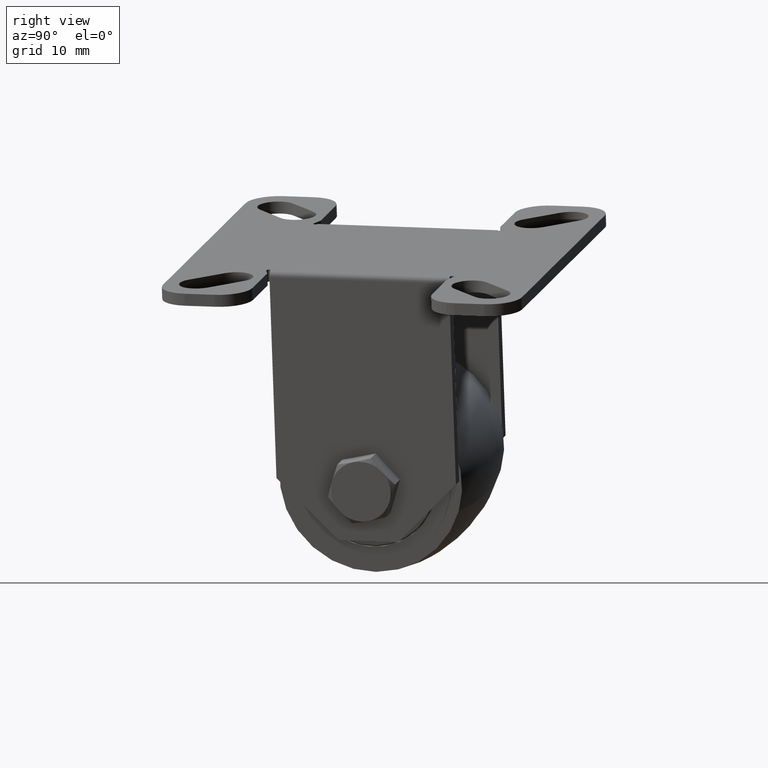
[diagram: clean part render]
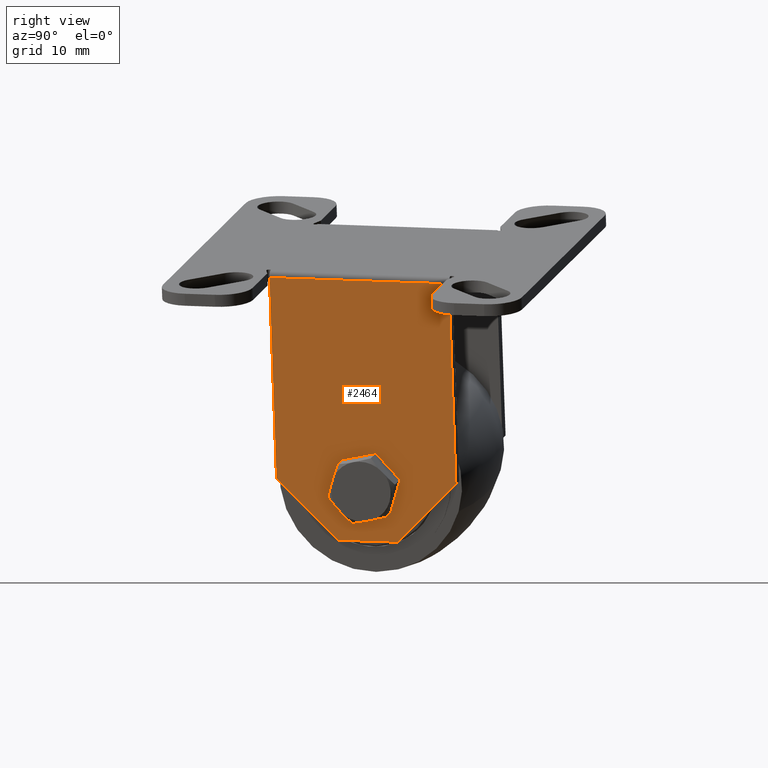
[diagram: same view with one face highlighted and labeled with its STEP entity id]
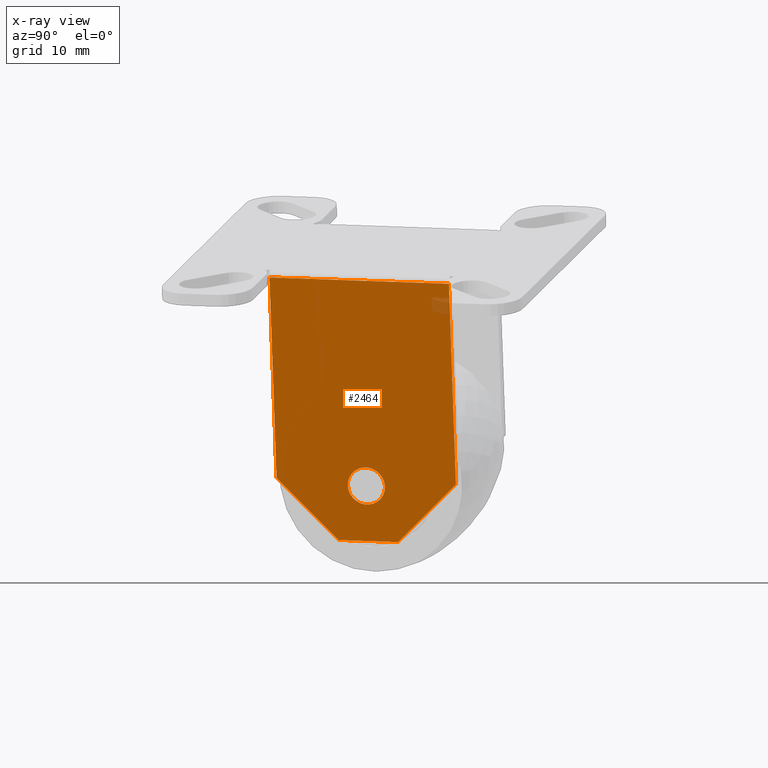
[diagram: x-ray of the same camera — body ghosted, the highlighted face saturated]
A machine part, right view. The second image highlights one B-rep face of the part: STEP entity #2464.
The next image is the same camera in x-ray: the body ghosted, the highlighted face saturated — about 1% of this face is hidden behind the body in this view.
In plain terms, the highlighted planar face has unit normal (-0.9323, 0.2575, 0.2541).
Its self-contained STEP definition (entity closure, byte-faithful):
#121=LINE('',#4623,#269);
#173=LINE('',#4738,#321);
#178=LINE('',#4747,#326);
#181=LINE('',#4753,#329);
#183=LINE('',#4758,#331);
#185=LINE('',#4761,#333);
#269=VECTOR('',#3257,30.);
#321=VECTOR('',#3409,33.5);
#326=VECTOR('',#3416,14.1421356237309);
#329=VECTOR('',#3421,33.5);
#331=VECTOR('',#3425,10.);
#333=VECTOR('',#3429,14.1421356237309);
#526=PLANE('',#2741);
#595=FACE_BOUND('',#935,.T.);
#731=FACE_OUTER_BOUND('',#934,.T.);
#934=EDGE_LOOP('',(#2266,#2267,#2268,#2269,#2270,#2271));
#935=EDGE_LOOP('',(#2272));
#1056=CIRCLE('',#2729,3.1);
#1269=VERTEX_POINT('',#4619);
#1270=VERTEX_POINT('',#4621);
#1274=VERTEX_POINT('',#4705);
#1283=VERTEX_POINT('',#4737);
#1286=VERTEX_POINT('',#4744);
#1288=VERTEX_POINT('',#4751);
#1290=VERTEX_POINT('',#4757);
#1552=EDGE_CURVE('',#1270,#1269,#121,.F.);
#1593=EDGE_CURVE('',#1274,#1274,#1056,.F.);
#1608=EDGE_CURVE('',#1283,#1269,#173,.T.);
#1613=EDGE_CURVE('',#1283,#1286,#178,.T.);
#1616=EDGE_CURVE('',#1288,#1270,#181,.T.);
#1618=EDGE_CURVE('',#1286,#1290,#183,.F.);
#1620=EDGE_CURVE('',#1290,#1288,#185,.F.);
#2266=ORIENTED_EDGE('',*,*,#1552,.F.);
#2267=ORIENTED_EDGE('',*,*,#1616,.F.);
#2268=ORIENTED_EDGE('',*,*,#1620,.F.);
#2269=ORIENTED_EDGE('',*,*,#1618,.F.);
#2270=ORIENTED_EDGE('',*,*,#1613,.F.);
#2271=ORIENTED_EDGE('',*,*,#1608,.T.);
#2272=ORIENTED_EDGE('',*,*,#1593,.T.);
#2464=ADVANCED_FACE('',(#731,#595),#526,.F.);
#2729=AXIS2_PLACEMENT_3D('',#4706,#3377,#3378);
#2741=AXIS2_PLACEMENT_3D('',#4760,#3427,#3428);
#3257=DIRECTION('',(0.,-1.,0.));
#3377=DIRECTION('center_axis',(1.,0.,0.));
#3378=DIRECTION('ref_axis',(0.,-1.,0.));
#3409=DIRECTION('',(0.,0.,1.));
#3416=DIRECTION('',(0.,-0.707106781186547,-0.707106781186547));
#3421=DIRECTION('',(0.,0.,1.));
#3425=DIRECTION('',(0.,1.,0.));
#3427=DIRECTION('center_axis',(-1.,0.,0.));
#3428=DIRECTION('ref_axis',(0.,-1.,0.));
#3429=DIRECTION('',(0.,0.707106781186547,-0.707106781186547));
#4619=CARTESIAN_POINT('',(15.5599088669,15.,1.));
#4621=CARTESIAN_POINT('',(15.5599088669,-15.,1.));
#4623=CARTESIAN_POINT('',(15.5599088669,0.,1.));
#4705=CARTESIAN_POINT('',(15.5599088669,3.1,-33.3));
#4706=CARTESIAN_POINT('Origin',(15.5599088669,0.,-33.3));
#4737=CARTESIAN_POINT('',(15.5599088669,15.,-32.5));
#4738=CARTESIAN_POINT('',(15.5599088669,15.,-15.75));
#4744=CARTESIAN_POINT('',(15.5599088669,5.,-42.5));
#4747=CARTESIAN_POINT('',(15.5599088669,10.,-37.5));
#4751=CARTESIAN_POINT('',(15.5599088669,-15.,-32.5));
#4753=CARTESIAN_POINT('',(15.5599088669,-15.,-15.75));
#4757=CARTESIAN_POINT('',(15.5599088669,-5.,-42.5));
#4758=CARTESIAN_POINT('',(15.5599088669,-2.6645352591E-15,-42.5));
#4760=CARTESIAN_POINT('Origin',(15.5599088669,15.,0.));
#4761=CARTESIAN_POINT('',(15.5599088669,-10.,-37.5));